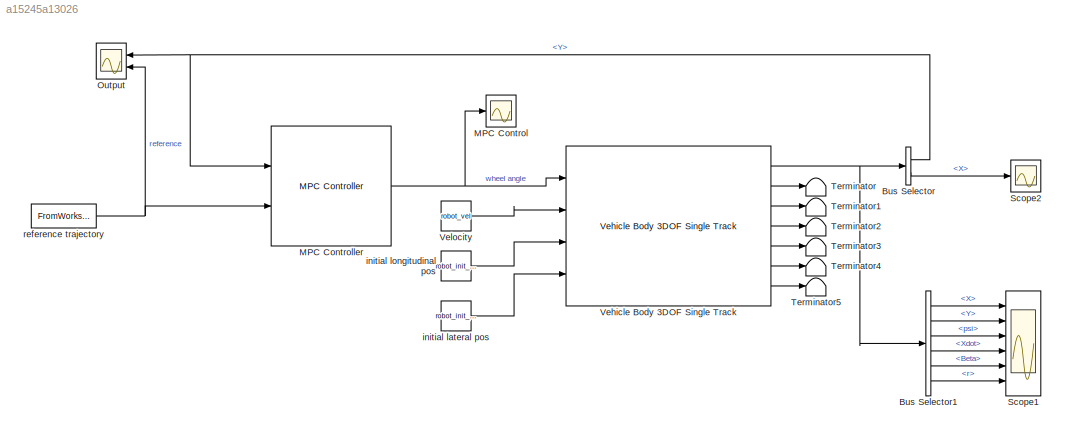
MODEL slx_a15245a13026
KIND model
CONFIG AbsTol = auto
CONFIG EnableMultiTasking = off
CONFIG FixedStep = h
CONFIG MaxStep = auto
CONFIG MinStep = auto
CONFIG RelTol = 1e-3
CONFIG SampleTimeConstraint = Unconstrained
CONFIG Solver = FixedStepAuto
CONFIG SolverName = FixedStepAuto
CONFIG StartTime = 0.0
CONFIG StopTime = 63.05
BLOCK [BusSelector] Bus Selector
  OutputSignals = InertFrm.Cg.Disp.Y,InertFrm.Cg.Disp.X
  Ports = [1, 2]
BLOCK [BusSelector] Bus Selector1
  OutputSignals = InertFrm.Cg.Disp.X,InertFrm.Cg.Disp.Y,InertFrm.Cg.Ang.psi,InertFrm.Cg.Vel.Xdot,BdyFrm.Cg.Ang.Beta,BdyFrm.Cg.AngVel.r
  Ports = [1, 6]
BLOCK [Scope] MPC Control
  Floating = off
  NumInputPorts = 1
  Ports = [1]
  ScopeSpecificationString = Simulink.scopes.TimeScopeBlockCfg('CurrentConfiguration', extmgr.ConfigurationSet(extmgr.Configuration('Core','General UI',true),extmgr.Configuration('Core','Source UI',true),extmgr.Configuration('Sources','WiredSimulink',true,'DataLoggingVariableName','control_signal','DataLogging',true),extmgr.Configuration('Visuals','Time Domain',true,'SerializedDisplays',{struct('MinYLimReal','-0.78099','MaxYL...<+1417ch>
BLOCK [Reference] MPC Controller  REF=mpclib/MPC Controller  (lib defined in mdl_ae329e0e0455)
  Ports = [2, 1]
  SCDEnableBlockLinearizationSpecification = on
  SourceBlock = mpclib/MPC Controller
  SourceProductBaseCode = MP
  SourceType = MPC
BLOCK [Scope] Output
  Floating = off
  NumInputPorts = 2
  Ports = [2]
  ScopeSpecificationString = Simulink.scopes.TimeScopeBlockCfg('CurrentConfiguration', extmgr.ConfigurationSet(extmgr.Configuration('Core','General UI',true),extmgr.Configuration('Core','Source UI',true),extmgr.Configuration('Sources','WiredSimulink',true,'DataLoggingVariableName','output','DataLogging',true),extmgr.Configuration('Visuals','Time Domain',true,'SerializedDisplays',{struct('MinYLimReal','-3.72968','MaxYLimReal',...<+1531ch>
BLOCK [Scope] Scope1
  Floating = off
  NumInputPorts = 6
  Ports = [6]
  ScopeSpecificationString = Simulink.scopes.TimeScopeBlockCfg('CurrentConfiguration', extmgr.ConfigurationSet(extmgr.Configuration('Core','General UI',true),extmgr.Configuration('Core','Source UI',true),extmgr.Configuration('Sources','WiredSimulink',true,'DataLoggingVariableName','states','DataLogging',true),extmgr.Configuration('Visuals','Time Domain',true,'SerializedDisplays',{struct('MinYLimReal','-10','MaxYLimReal','10',...<+1361ch>
BLOCK [Scope] Scope2
  Floating = off
  NumInputPorts = 1
  Ports = [1]
  ScopeSpecificationString = Simulink.scopes.TimeScopeBlockCfg('CurrentConfiguration', extmgr.ConfigurationSet(extmgr.Configuration('Core','General UI',true),extmgr.Configuration('Core','Source UI',true),extmgr.Configuration('Sources','WiredSimulink',true,'DataLoggingVariableName','output_lon','DataLogging',true),extmgr.Configuration('Visuals','Time Domain',true,'SerializedDisplays',{struct('MinYLimReal','-6.43467','MaxYLimRe...<+1414ch>
BLOCK [Terminator] Terminator
BLOCK [Terminator] Terminator1
BLOCK [Terminator] Terminator2
BLOCK [Terminator] Terminator3
BLOCK [Terminator] Terminator4
BLOCK [Terminator] Terminator5
BLOCK [Reference] Vehicle Body 3DOF Single Track  REF=autolibshared/Vehicle Body 3DOF Single Track
  Ports = [4, 7]
  SourceBlock = autolibshared/Vehicle Body 3DOF Single Track
  SourceProductBaseCode = PW,MT,VE,VP
  SourceType = Vehicle Body 3DOF Lateral
BLOCK [Constant] Velocity
  Value = robot_vel
BLOCK [Constant] initial lateral pos
  Value = robot_init_pos_sim(2)
BLOCK [Constant] initial longitudinal pos
  Value = robot_init_pos_sim(1)
BLOCK [FromWorkspace] reference trajectory
  OutputAfterFinalValue = Setting to zero
  SampleTime = h
  VariableName = ref_traj
LINE Bus Selector1:1 -> Scope1:1
LINE Bus Selector1:2 -> Scope1:2
LINE Bus Selector1:3 -> Scope1:3
LINE Bus Selector1:4 -> Scope1:4
LINE Bus Selector1:5 -> Scope1:5
LINE Bus Selector1:6 -> Scope1:6
NET Bus Selector:1 -> MPC Controller:1, Output:1
LINE Bus Selector:2 -> Scope2:1
NET MPC Controller:1 -> MPC Control:1, Vehicle Body 3DOF Single Track:1
NET Vehicle Body 3DOF Single Track:1 -> Bus Selector1:1, Bus Selector:1
LINE Vehicle Body 3DOF Single Track:2 -> Terminator:1
LINE Vehicle Body 3DOF Single Track:3 -> Terminator1:1
LINE Vehicle Body 3DOF Single Track:4 -> Terminator2:1
LINE Vehicle Body 3DOF Single Track:5 -> Terminator3:1
LINE Vehicle Body 3DOF Single Track:6 -> Terminator4:1
LINE Vehicle Body 3DOF Single Track:7 -> Terminator5:1
LINE Velocity:1 -> Vehicle Body 3DOF Single Track:2
LINE initial lateral pos:1 -> Vehicle Body 3DOF Single Track:4
LINE initial longitudinal pos:1 -> Vehicle Body 3DOF Single Track:3
NET reference trajectory:1 -> MPC Controller:2, Output:2
note: NET lines group one-source signal fan-out (src -> all destinations, sorted); 1:1 wires keep LINE
